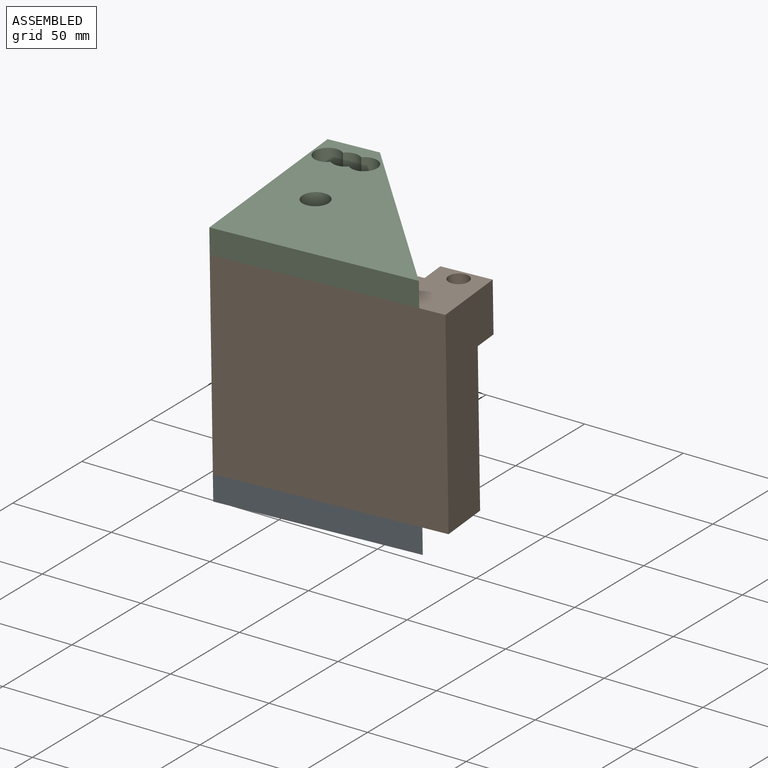
[diagram: assembled view]
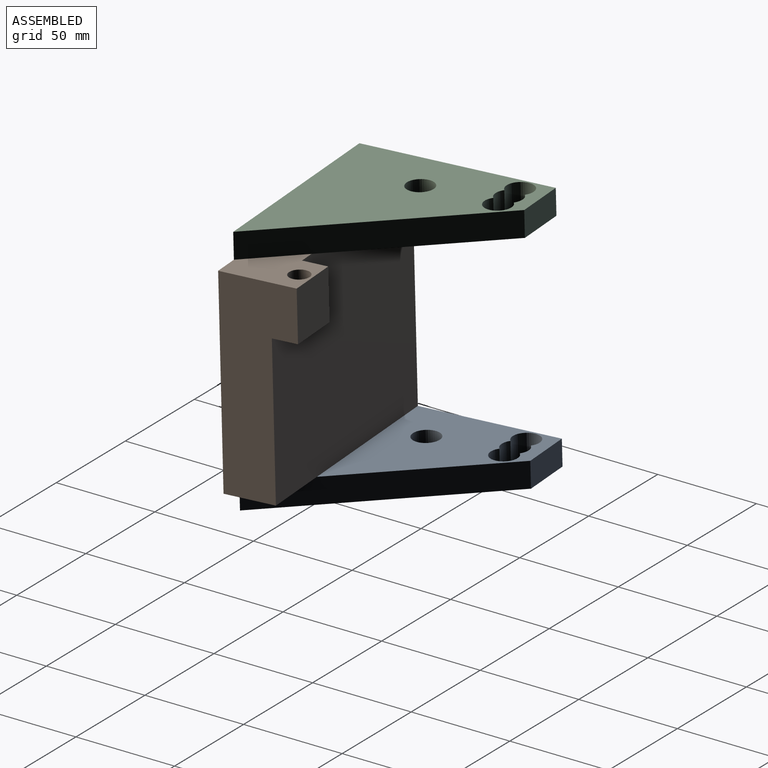
[diagram: assembled view, second angle]
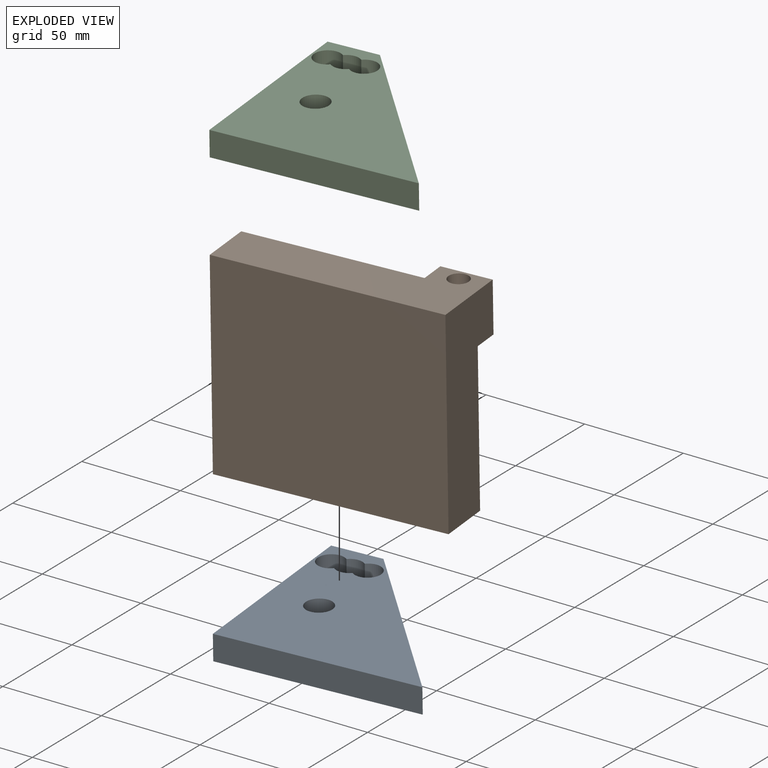
[diagram: exploded view]
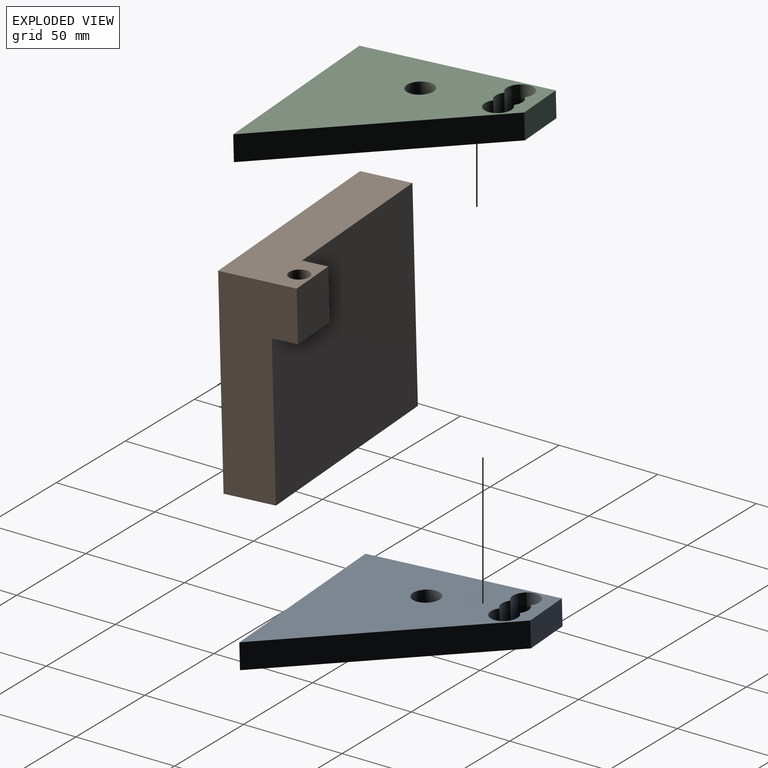
[diagram: exploded view, second angle]
ASSEMBLY  parts=3 mates=2
PART A: 11 faces, bbox 101.6x95.3x12.7 mm
  f0: plane 25.4x12.7mm, normal (0,1,0), area 322.6mm2, adj f1,f8,f9,f10
  f1: plane 95.25x12.7mm, normal (-1,0,0), area 1209.7mm2, adj f0,f2,f9,f10
  f2: plane 101.6x12.7mm, normal (0,-1,0), area 1290.3mm2, adj f1,f8,f9,f10
  f3: cylinder r=6.67mm len=12.7mm, axis (0,0,-1), area 123.6mm2, adj f4,f6,f9,f10
  f4: cylinder r=6.67mm len=13.34mm, axis (0,0,-1), area 389.6mm2, adj f3,f5,f9,f10
  f5: cylinder r=6.67mm len=12.7mm, axis (0,0,-1), area 123.6mm2, adj f4,f6,f9,f10
  f6: cylinder r=6.67mm len=13.34mm, axis (0,0,-1), area 389.6mm2, adj f3,f5,f9,f10
  f7: cylinder r=6.67mm len=13.34mm, axis (0,0,-1), area 532mm2, adj f9,f10
  f8: plane 95.25x76.2mm, normal (0.78,0.62,0), area 1549.1mm2, adj f0,f2,f9,f10
  f9: plane 101.6x95.25mm, normal (0,0,1), area 5550.9mm2, adj f0,f1,f2,f3,f4,f5,f6,f7
  f10: plane 101.6x95.25mm, normal (0,0,-1), area 5550.9mm2, adj f0,f1,f2,f3,f4,f5,f6,f7
PART B: 10 faces, bbox 114.3x38.1x101.6 mm
  f0: plane 101.6x38.1mm, normal (1,0,0), area 2903.2mm2, adj f1,f3,f4,f6,f7,f8
  f1: plane 25.4x25.4mm, normal (0,1,0), area 645.2mm2, adj f0,f2,f3,f4
  f2: plane 25.4x12.7mm, normal (-1,0,0), area 322.6mm2, adj f1,f3,f4,f8
  f3: plane 25.4x12.7mm, normal (0,0,-1), area 241.5mm2, adj f0,f1,f2,f8,f9
  f4: plane 114.3x38.1mm, normal (0,0,1), area 3144.7mm2, adj f0,f1,f2,f5,f7,f8,f9
  f5: plane 101.6x25.4mm, normal (-1,0,0), area 2580.6mm2, adj f4,f6,f7,f8
  f6: plane 114.3x25.4mm, normal (0,0,-1), area 2903.2mm2, adj f0,f5,f7,f8
  f7: plane 114.3x101.6mm, normal (0,-1,0), area 11612.9mm2, adj f0,f4,f5,f6
  f8: plane 114.3x101.6mm, normal (0,1,0), area 10967.7mm2, adj f0,f2,f3,f4,f5,f6
  f9: cylinder r=5.08mm len=25.4mm, axis (0,0,1), area 810.7mm2, adj f3,f4
PART C: same geometry as A
PLACE A rot(axis=(0.35,0.02,0.94),4.2deg) t=(-88.79,-84.97,-126.24)mm
PLACE B rot(axis=(0.35,0.02,0.94),4.2deg) t=(10.66,-53.15,-106.75)mm
PLACE C rot(axis=(0.35,0.02,0.94),4.2deg) t=(-88.55,-87.88,-11.97)mm
MATE fastened B.f4 <-> C.f10  axis (0,-0.03,1) through (-88.55,-87.88,-11.97)mm
MATE fastened A.f9 <-> B.f6  axis (0,-0.03,1) through (-88.76,-85.29,-113.54)mm
